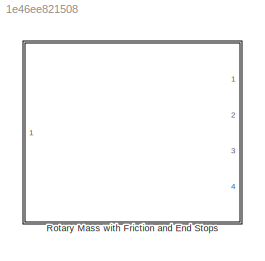
MODEL slx_1e46ee821508
KIND library
CONFIG AbsTol = auto
CONFIG EnableMultiTasking = on
CONFIG FixedStep = auto
CONFIG MaxStep = auto
CONFIG MinStep = auto
CONFIG RelTol = 1e-3
CONFIG SampleTimeConstraint = Unconstrained
CONFIG SolverName = ode45
CONFIG StartTime = 0.0
CONFIG StopTime = 10.0
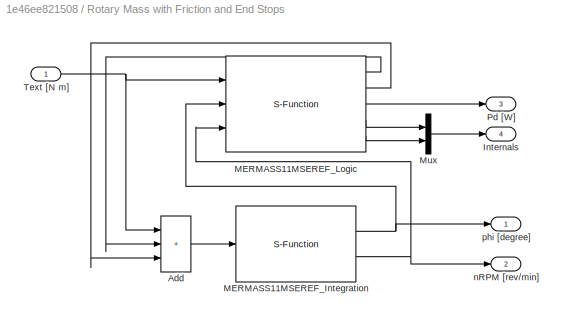
BLOCK [SubSystem] Rotary Mass with Friction and End Stops
  AttributesFormatString = <%<Tag>>
  Ports = [1, 4]
  RequestExecContextInheritance = off
  Tag = MERMASS11MSEREF
BLOCK [Sum] Rotary Mass with Friction and End Stops/Add
  IconShape = rectangular
  Inputs = +++
  Ports = [3, 1]
BLOCK [Outport] Rotary Mass with Friction and End Stops/Internals
  Port = 4
BLOCK [S-Function] Rotary Mass with Friction and End Stops/MERMASS11MSEREF_Integration
  EnableBusSupport = off
  FunctionName = MERMASS11MSEREF_Integration_sfn
  Parameters = phiinit, nRPMinit, J
  Ports = [1, 2]
  SFcnIsStateOwnerBlock = off
  SFunctionDeploymentMode = off
BLOCK [S-Function] Rotary Mass with Friction and End Stops/MERMASS11MSEREF_Logic
  EnableBusSupport = off
  FunctionName = MERMASS11MSEREF_Logic_sfn
  Parameters = phiinit, J, dvisc, frictionmode, epsn, tauinv, TStick, TCoulomb, nStri, endstopmode, phimin, phimax, cstop, kimpact
  Ports = [3, 5]
  SFcnIsStateOwnerBlock = off
  SFunctionDeploymentMode = off
BLOCK [Mux] Rotary Mass with Friction and End Stops/Mux
  DisplayOption = bar
  Inputs = 2
  Ports = [2, 1]
BLOCK [Outport] Rotary Mass with Friction and End Stops/Pd [W]
  Port = 3
BLOCK [Inport] Rotary Mass with Friction and End Stops/Text [N m]
BLOCK [Outport] Rotary Mass with Friction and End Stops/nRPM [rev//min]
  Port = 2
BLOCK [Outport] Rotary Mass with Friction and End Stops/phi [degree]
LINE Rotary Mass with Friction and End Stops/Add:1 -> Rotary Mass with Friction and End Stops/MERMASS11MSEREF_Integration:1
NET Rotary Mass with Friction and End Stops/MERMASS11MSEREF_Integration:1 -> Rotary Mass with Friction and End Stops/MERMASS11MSEREF_Logic:2, Rotary Mass with Friction and End Stops/phi [degree]:1
NET Rotary Mass with Friction and End Stops/MERMASS11MSEREF_Integration:2 -> Rotary Mass with Friction and End Stops/MERMASS11MSEREF_Logic:3, Rotary Mass with Friction and End Stops/nRPM [rev//min]:1
LINE Rotary Mass with Friction and End Stops/MERMASS11MSEREF_Logic:1 -> Rotary Mass with Friction and End Stops/Add:2
LINE Rotary Mass with Friction and End Stops/MERMASS11MSEREF_Logic:2 -> Rotary Mass with Friction and End Stops/Add:3
LINE Rotary Mass with Friction and End Stops/MERMASS11MSEREF_Logic:3 -> Rotary Mass with Friction and End Stops/Pd [W]:1
LINE Rotary Mass with Friction and End Stops/MERMASS11MSEREF_Logic:4 -> Rotary Mass with Friction and End Stops/Mux:1
LINE Rotary Mass with Friction and End Stops/MERMASS11MSEREF_Logic:5 -> Rotary Mass with Friction and End Stops/Mux:2
LINE Rotary Mass with Friction and End Stops/Mux:1 -> Rotary Mass with Friction and End Stops/Internals:1
NET Rotary Mass with Friction and End Stops/Text [N m]:1 -> Rotary Mass with Friction and End Stops/Add:1, Rotary Mass with Friction and End Stops/MERMASS11MSEREF_Logic:1
note: NET lines group one-source signal fan-out (src -> all destinations, sorted); 1:1 wires keep LINE
